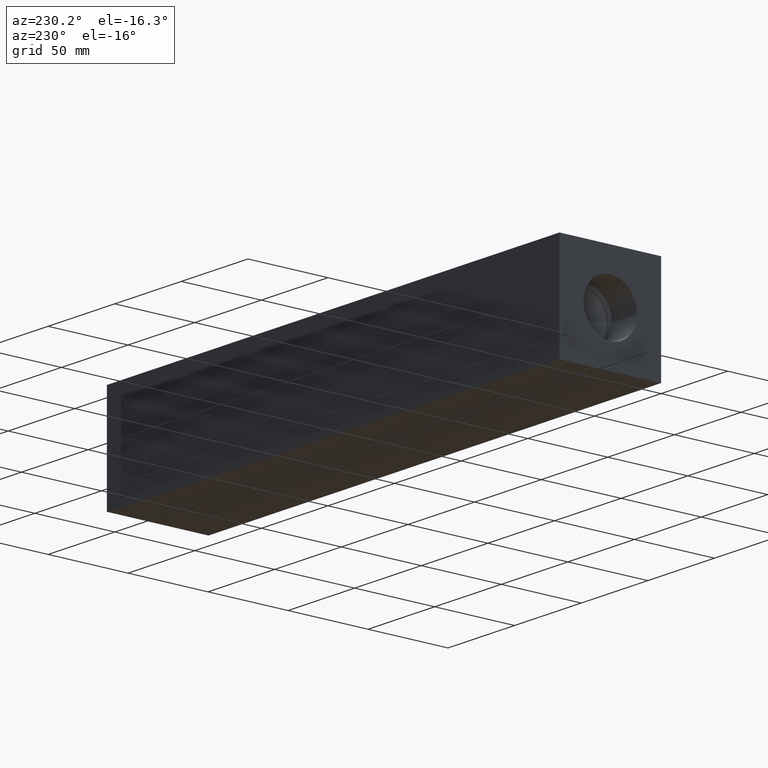
[diagram: clean part render]
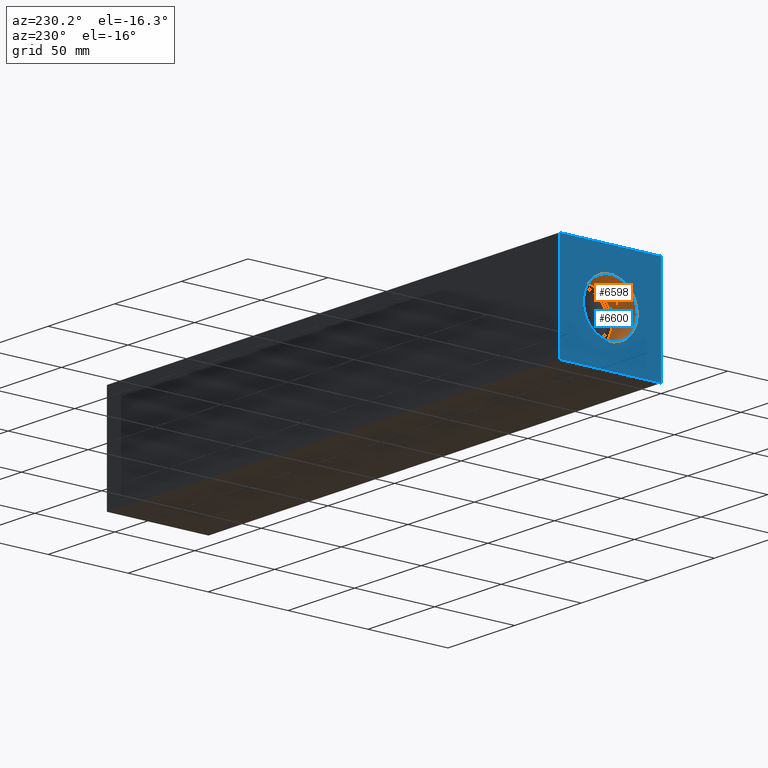
[diagram: same view with the hole feature highlighted: cylindrical wall and planar end face, labeled with their STEP entity ids]
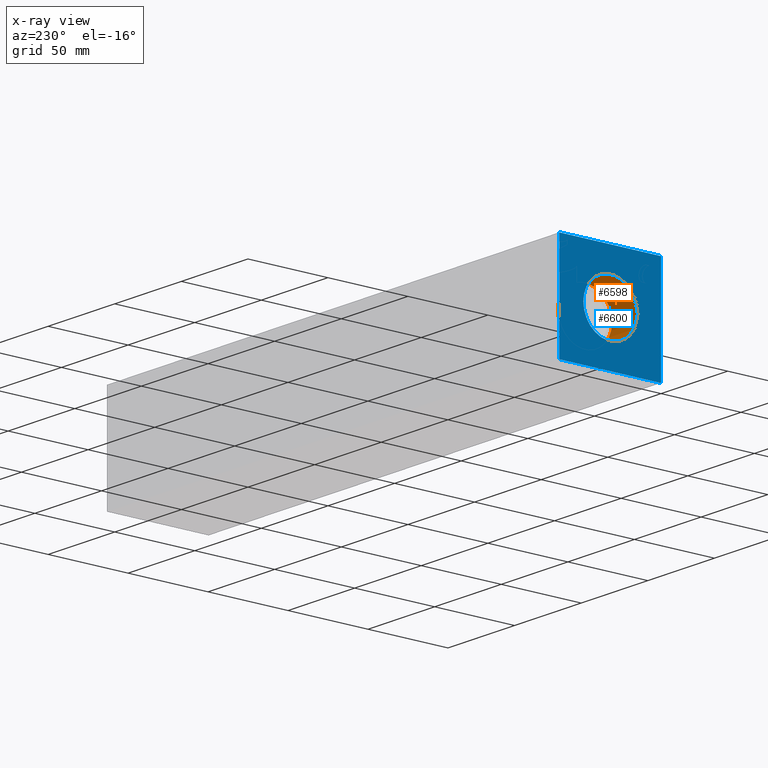
[diagram: x-ray of the same camera — body ghosted, the hole faces saturated]
A machine part, auxiliary view. The highlighted faces form one hole feature of diameter 33.7058 mm: the cylindrical wall (entity #6598, orange) and its adjacent planar end face (entity #6600, blue) — they share a circular edge in the B-rep.
The next image is the same camera in x-ray (body ghosted, the hole faces saturated) — the bore reads through the body.
Wall:
#28=CYLINDRICAL_SURFACE('',#6925,16.8529);
#93=CIRCLE('',#6922,16.8529);
#94=CIRCLE('',#6923,16.8529);
#96=CIRCLE('',#6926,16.8529);
#97=CIRCLE('',#6927,16.8529);
#698=FACE_OUTER_BOUND('',#1071,.T.);
#1071=EDGE_LOOP('',(#5868,#5869,#5870,#5871,#5872,#5873));
#1760=LINE('',#11062,#2447);
#2447=VECTOR('',#8230,16.8529);
#3210=VERTEX_POINT('',#11051);
#3211=VERTEX_POINT('',#11052);
#3213=VERTEX_POINT('',#11058);
#3214=VERTEX_POINT('',#11059);
#4101=EDGE_CURVE('',#3210,#3211,#93,.T.);
#4102=EDGE_CURVE('',#3211,#3210,#94,.T.);
#4104=EDGE_CURVE('',#3213,#3214,#96,.T.);
#4105=EDGE_CURVE('',#3214,#3213,#97,.T.);
#4106=EDGE_CURVE('',#3214,#3211,#1760,.T.);
#5868=ORIENTED_EDGE('',*,*,#4104,.F.);
#5869=ORIENTED_EDGE('',*,*,#4105,.F.);
#5870=ORIENTED_EDGE('',*,*,#4106,.T.);
#5871=ORIENTED_EDGE('',*,*,#4101,.F.);
#5872=ORIENTED_EDGE('',*,*,#4102,.F.);
#5873=ORIENTED_EDGE('',*,*,#4106,.F.);
#6598=ADVANCED_FACE('',(#698),#28,.F.);
#6922=AXIS2_PLACEMENT_3D('',#11053,#8218,#8219);
#6923=AXIS2_PLACEMENT_3D('',#11054,#8220,#8221);
#6925=AXIS2_PLACEMENT_3D('',#11057,#8224,#8225);
#6926=AXIS2_PLACEMENT_3D('',#11060,#8226,#8227);
#6927=AXIS2_PLACEMENT_3D('',#11061,#8228,#8229);
#8218=DIRECTION('center_axis',(-1.,0.,0.));
#8219=DIRECTION('ref_axis',(0.,1.,0.));
#8220=DIRECTION('center_axis',(-1.,0.,0.));
#8221=DIRECTION('ref_axis',(0.,1.,0.));
#8224=DIRECTION('center_axis',(-1.,0.,0.));
#8225=DIRECTION('ref_axis',(0.,1.,0.));
#8226=DIRECTION('center_axis',(1.,0.,0.));
#8227=DIRECTION('ref_axis',(0.,1.,0.));
#8228=DIRECTION('center_axis',(1.,0.,0.));
#8229=DIRECTION('ref_axis',(0.,1.,0.));
#8230=DIRECTION('',(1.,0.,0.));
#11051=CARTESIAN_POINT('',(18.9992,48.6029,31.75));
#11052=CARTESIAN_POINT('',(18.9992,14.8971,31.75));
#11053=CARTESIAN_POINT('Origin',(18.9992,31.75,31.75));
#11054=CARTESIAN_POINT('Origin',(18.9992,31.75,31.75));
#11057=CARTESIAN_POINT('Origin',(9.4996,31.75,31.75));
#11058=CARTESIAN_POINT('',(0.,48.6029,31.75));
#11059=CARTESIAN_POINT('',(0.,14.8971,31.75));
#11060=CARTESIAN_POINT('Origin',(0.,31.75,31.75));
#11061=CARTESIAN_POINT('Origin',(0.,31.75,31.75));
#11062=CARTESIAN_POINT('',(9.4996,14.8971,31.75));
End face:
#96=CIRCLE('',#6926,16.8529);
#97=CIRCLE('',#6927,16.8529);
#138=FACE_BOUND('',#1074,.T.);
#367=PLANE('',#6929);
#700=FACE_OUTER_BOUND('',#1073,.T.);
#1073=EDGE_LOOP('',(#5879,#5880,#5881,#5882));
#1074=EDGE_LOOP('',(#5883,#5884));
#1358=LINE('',#9973,#2045);
#1762=LINE('',#11068,#2449);
#1763=LINE('',#11069,#2450);
#1764=LINE('',#11070,#2451);
#2045=VECTOR('',#7370,10.);
#2449=VECTOR('',#8236,10.);
#2450=VECTOR('',#8237,10.);
#2451=VECTOR('',#8238,10.);
#2881=VERTEX_POINT('',#9966);
#2884=VERTEX_POINT('',#9971);
#3213=VERTEX_POINT('',#11058);
#3214=VERTEX_POINT('',#11059);
#3215=VERTEX_POINT('',#11066);
#3216=VERTEX_POINT('',#11067);
#3630=EDGE_CURVE('',#2884,#2881,#1358,.T.);
#4104=EDGE_CURVE('',#3213,#3214,#96,.T.);
#4105=EDGE_CURVE('',#3214,#3213,#97,.T.);
#4108=EDGE_CURVE('',#3215,#3216,#1762,.T.);
#4109=EDGE_CURVE('',#3216,#2881,#1763,.T.);
#4110=EDGE_CURVE('',#3215,#2884,#1764,.T.);
#5879=ORIENTED_EDGE('',*,*,#4108,.T.);
#5880=ORIENTED_EDGE('',*,*,#4109,.T.);
#5881=ORIENTED_EDGE('',*,*,#3630,.F.);
#5882=ORIENTED_EDGE('',*,*,#4110,.F.);
#5883=ORIENTED_EDGE('',*,*,#4104,.T.);
#5884=ORIENTED_EDGE('',*,*,#4105,.T.);
#6600=ADVANCED_FACE('',(#700,#138),#367,.T.);
#6926=AXIS2_PLACEMENT_3D('',#11060,#8226,#8227);
#6927=AXIS2_PLACEMENT_3D('',#11061,#8228,#8229);
#6929=AXIS2_PLACEMENT_3D('',#11065,#8234,#8235);
#7370=DIRECTION('',(0.,-1.,0.));
#8226=DIRECTION('center_axis',(1.,0.,0.));
#8227=DIRECTION('ref_axis',(0.,1.,0.));
#8228=DIRECTION('center_axis',(1.,0.,0.));
#8229=DIRECTION('ref_axis',(0.,1.,0.));
#8234=DIRECTION('center_axis',(-1.,0.,0.));
#8235=DIRECTION('ref_axis',(0.,-1.,0.));
#8236=DIRECTION('',(0.,-1.,0.));
#8237=DIRECTION('',(0.,0.,1.));
#8238=DIRECTION('',(0.,0.,1.));
#9966=CARTESIAN_POINT('',(0.,0.,63.5));
#9971=CARTESIAN_POINT('',(0.,63.5,63.5));
#9973=CARTESIAN_POINT('',(0.,63.5,63.5));
#11058=CARTESIAN_POINT('',(0.,48.6029,31.75));
#11059=CARTESIAN_POINT('',(0.,14.8971,31.75));
#11060=CARTESIAN_POINT('Origin',(0.,31.75,31.75));
#11061=CARTESIAN_POINT('Origin',(0.,31.75,31.75));
#11065=CARTESIAN_POINT('Origin',(0.,63.5,0.));
#11066=CARTESIAN_POINT('',(0.,63.5,0.));
#11067=CARTESIAN_POINT('',(0.,0.,0.));
#11068=CARTESIAN_POINT('',(0.,63.5,0.));
#11069=CARTESIAN_POINT('',(0.,0.,0.));
#11070=CARTESIAN_POINT('',(0.,63.5,0.));